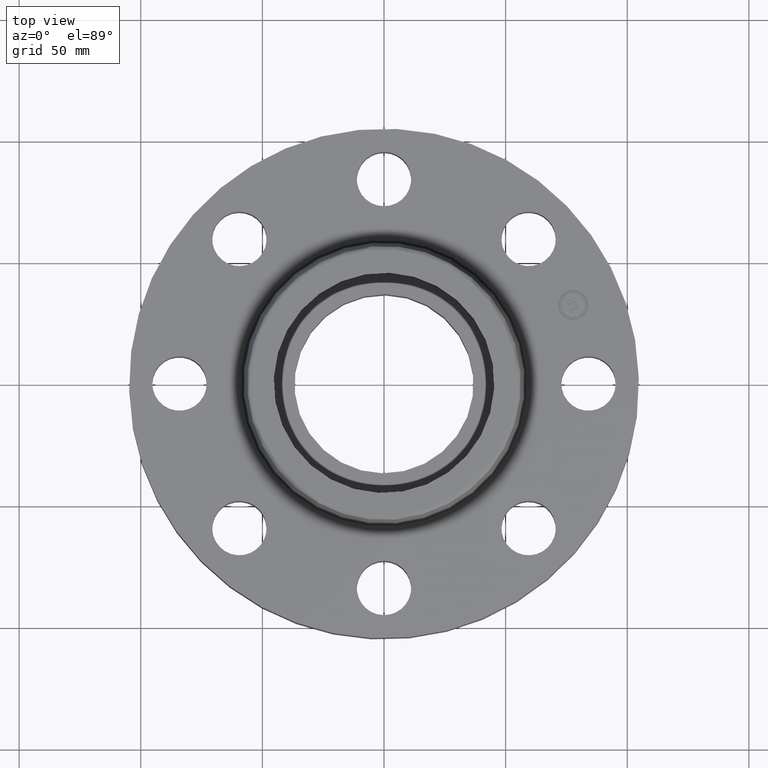
[diagram: clean part render]
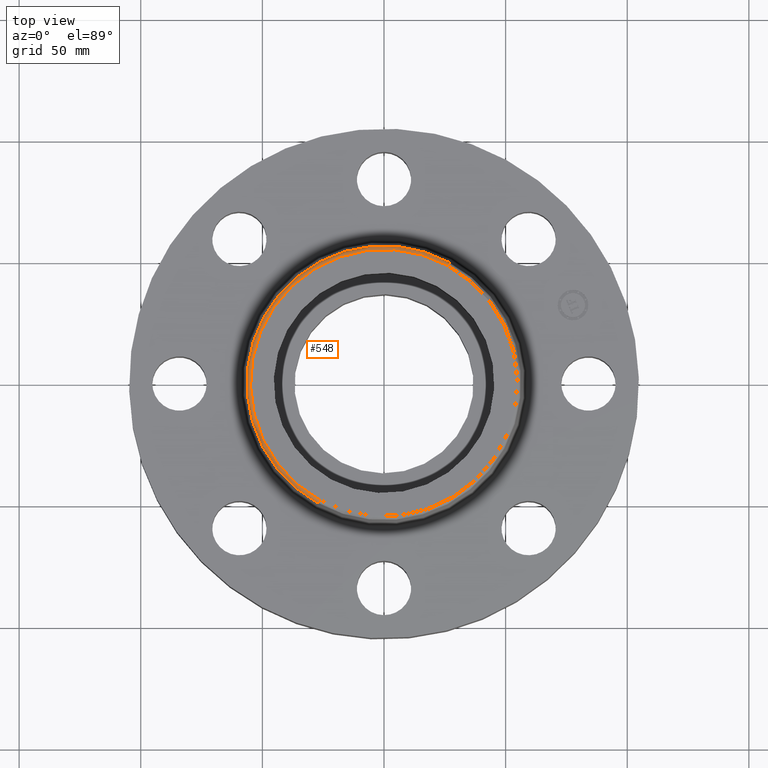
[diagram: same view with one face highlighted and labeled with its STEP entity id]
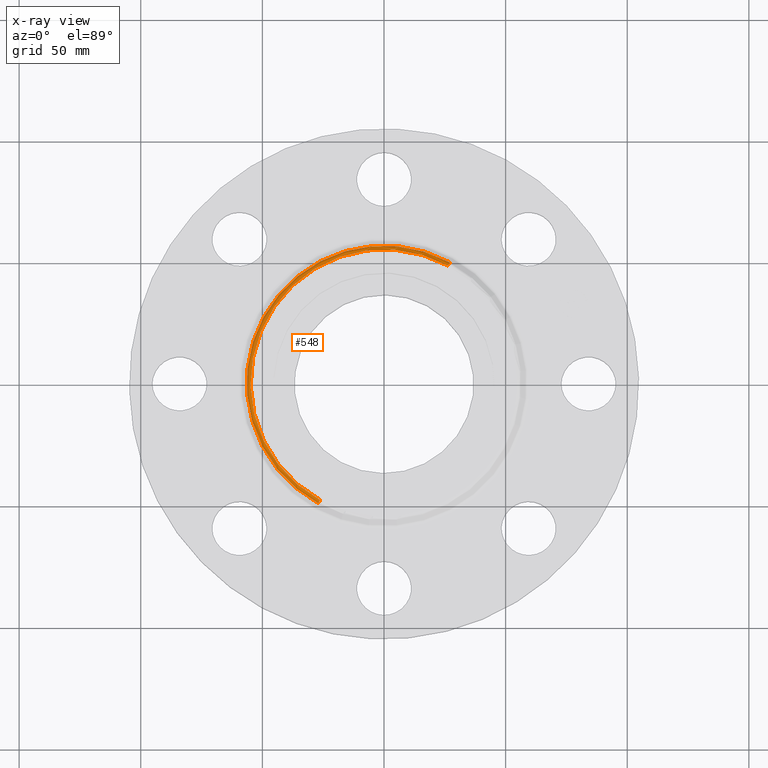
[diagram: x-ray of the same camera — body ghosted, the highlighted face saturated]
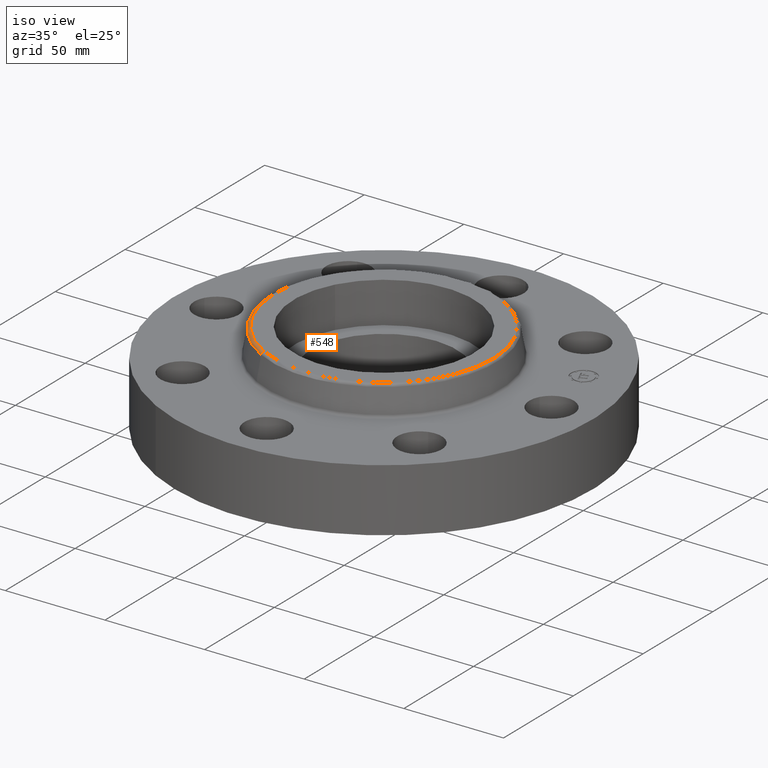
[diagram: same view with one face highlighted and labeled with its STEP entity id]
A machine part, top view. The second image highlights one B-rep face of the part: STEP entity #548.
The next image is the same camera in x-ray: the body ghosted, the highlighted face saturated — about 0% of this face is hidden behind the body in this view.
A second angle (iso view) of the same face is appended — the face is thin or edge-on in the first view.
In plain terms, the highlighted toroidal blend (fillet) surface has major radius 54.8871 mm and minor (blend) radius 1.524 mm.
Its self-contained STEP definition (entity closure, byte-faithful):
#496=AXIS2_PLACEMENT_3D('Circle Axis2P3D',#494,#495,$) ;
#509=AXIS2_PLACEMENT_3D('Torus Axis2P3D',#506,#507,#508) ;
#513=AXIS2_PLACEMENT_3D('Circle Axis2P3D',#511,#512,$) ;
#527=AXIS2_PLACEMENT_3D('Circle Axis2P3D',#525,#526,$) ;
#539=AXIS2_PLACEMENT_3D('Circle Axis2P3D',#537,#538,$) ;
#472=CARTESIAN_POINT('Vertex',(1.06432439756,1.94823274165,1.76041889067)) ;
#479=CARTESIAN_POINT('Vertex',(-1.06432439756,-1.94823274165,1.76041889067)) ;
#494=CARTESIAN_POINT('Axis2P3D Location',(0.,0.,1.76041889067)) ;
#506=CARTESIAN_POINT('Axis2P3D Location',(0.,0.,1.75000000001)) ;
#511=CARTESIAN_POINT('Axis2P3D Location',(1.03599587831,1.896377735,1.75000000001)) ;
#515=CARTESIAN_POINT('Vertex',(1.03599587831,1.896377735,1.81000000001)) ;
#522=CARTESIAN_POINT('Vertex',(-1.03599587831,-1.896377735,1.81000000001)) ;
#525=CARTESIAN_POINT('Axis2P3D Location',(-1.03599587831,-1.896377735,1.75000000001)) ;
#537=CARTESIAN_POINT('Axis2P3D Location',(0.,0.,1.81000000001)) ;
#495=DIRECTION('Axis2P3D Direction',(0.,0.,-0.0393700787402)) ;
#507=DIRECTION('Axis2P3D Direction',(0.,0.,-0.0393700787402)) ;
#508=DIRECTION('Axis2P3D XDirection',(-0.0188750212049,-0.0345504945626,0.)) ;
#512=DIRECTION('Axis2P3D Direction',(-0.0345504945626,0.0188750212049,0.)) ;
#526=DIRECTION('Axis2P3D Direction',(0.0345504945626,-0.0188750212049,0.)) ;
#538=DIRECTION('Axis2P3D Direction',(0.,0.,-0.0393700787402)) ;
#543=ORIENTED_EDGE('',*,*,#498,.F.) ;
#544=ORIENTED_EDGE('',*,*,#529,.T.) ;
#545=ORIENTED_EDGE('',*,*,#541,.T.) ;
#546=ORIENTED_EDGE('',*,*,#517,.F.) ;
#548=ADVANCED_FACE('PartBody',(#547),#510,.T.) ;
#497=CIRCLE('generated circle',#496,2.21999937812) ;
#514=CIRCLE('generated circle',#513,0.0600000000002) ;
#528=CIRCLE('generated circle',#527,0.0600000000002) ;
#540=CIRCLE('generated circle',#539,2.16091091294) ;
#510=TOROIDAL_SURFACE('homeo Torus',#509,2.16091091294,0.0600000000002) ;
#498=EDGE_CURVE('',#480,#473,#497,.T.) ;
#517=EDGE_CURVE('',#473,#516,#514,.F.) ;
#529=EDGE_CURVE('',#480,#523,#528,.F.) ;
#541=EDGE_CURVE('',#523,#516,#540,.T.) ;
#542=EDGE_LOOP('',(#543,#544,#545,#546)) ;
#547=FACE_OUTER_BOUND('',#542,.T.) ;
#473=VERTEX_POINT('',#472) ;
#480=VERTEX_POINT('',#479) ;
#516=VERTEX_POINT('',#515) ;
#523=VERTEX_POINT('',#522) ;